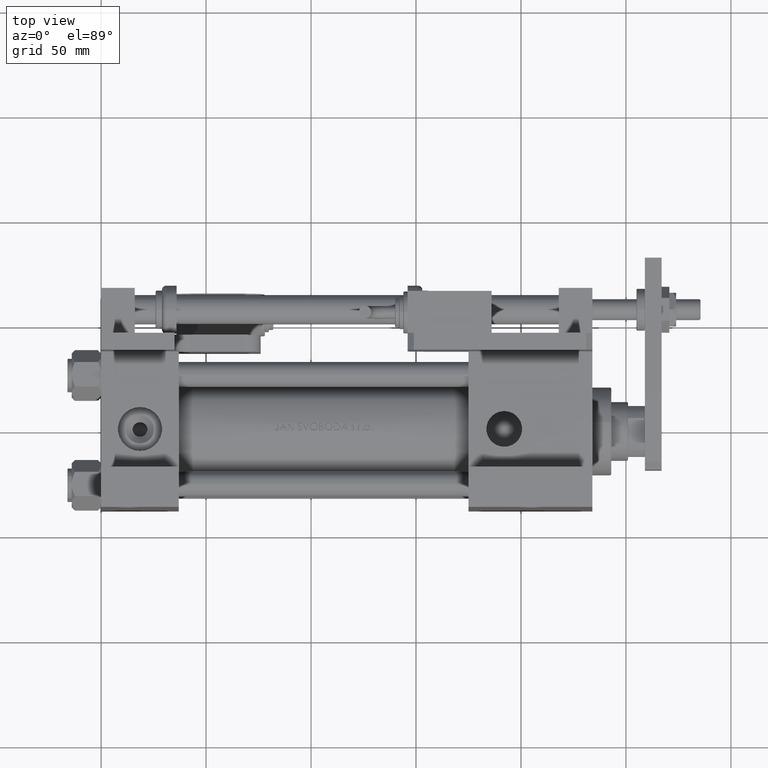
[diagram: clean part render]
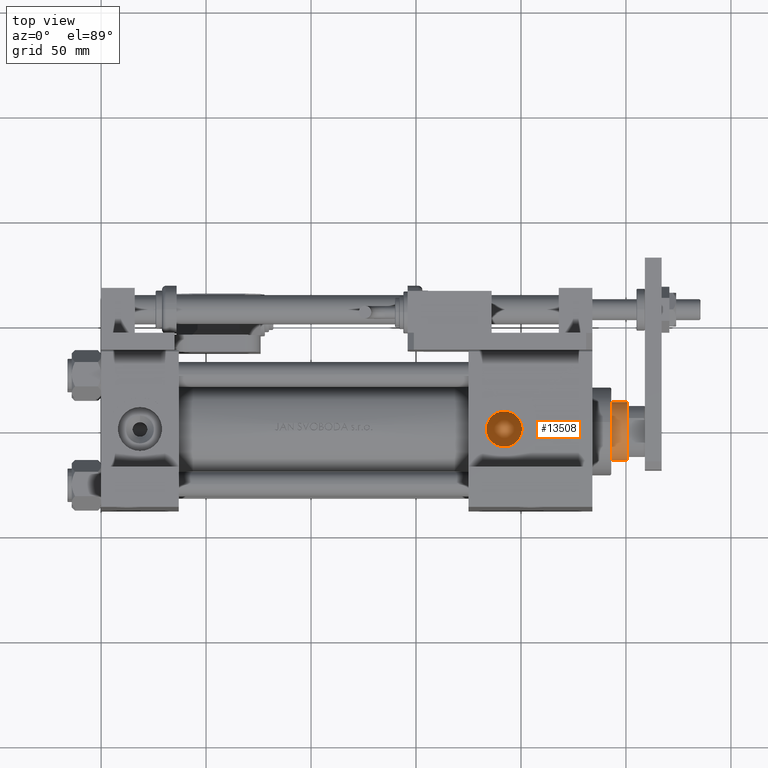
[diagram: same view with one face highlighted and labeled with its STEP entity id]
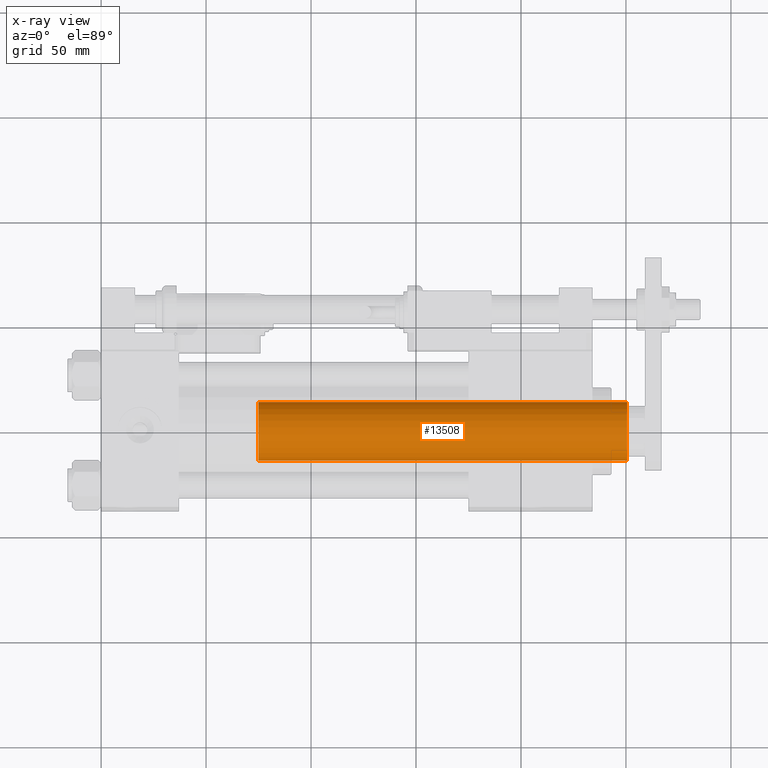
[diagram: x-ray of the same camera — body ghosted, the highlighted face saturated]
A machine part, top view. The second image highlights one B-rep face of the part: STEP entity #13508.
The next image is the same camera in x-ray: the body ghosted, the highlighted face saturated — about 0% of this face is hidden behind the body in this view.
In plain terms, the highlighted cylindrical surface (edge-blend (fillet) strip) has radius 14 mm, axis along (-1, -0, -0).
Its self-contained STEP definition (entity closure, byte-faithful):
#280 = VECTOR ( 'NONE', #20507, 1000.000000000000000 ) ;
#296 = DIRECTION ( 'NONE',  ( -1.000000000000000000, 0.000000000000000000, 0.000000000000000000 ) ) ;
#1086 = AXIS2_PLACEMENT_3D ( 'NONE', #51629, #43289, #9883 ) ;
#3216 = CARTESIAN_POINT ( 'NONE',  ( 0.000000000000000000, 0.000000000000000000, 213.5000000000000000 ) ) ;
#3514 = CARTESIAN_POINT ( 'NONE',  ( -14.00000000000000000, 0.000000000000000000, 214.0000000000000000 ) ) ;
#5299 = VERTEX_POINT ( 'NONE', #19379 ) ;
#5648 = EDGE_CURVE ( 'NONE', #5299, #8331, #11350, .T. ) ;
#5838 = CARTESIAN_POINT ( 'NONE',  ( -14.00000000000000000, 0.000000000000000000, 38.00000000000000000 ) ) ;
#7912 = AXIS2_PLACEMENT_3D ( 'NONE', #3216, #40402, #10774 ) ;
#8331 = VERTEX_POINT ( 'NONE', #29213 ) ;
#8670 = DIRECTION ( 'NONE',  ( -0.000000000000000000, -0.000000000000000000, -1.000000000000000000 ) ) ;
#8799 = CIRCLE ( 'NONE', #7912, 14.00000000000000000 ) ;
#8931 = CARTESIAN_POINT ( 'NONE',  ( 0.000000000000000000, 0.000000000000000000, 214.0000000000000000 ) ) ;
#9153 = ORIENTED_EDGE ( 'NONE', *, *, #28802, .T. ) ;
#9883 = DIRECTION ( 'NONE',  ( 1.000000000000000000, 0.000000000000000000, 0.000000000000000000 ) ) ;
#10774 = DIRECTION ( 'NONE',  ( 1.000000000000000000, 0.000000000000000000, 0.000000000000000000 ) ) ;
#10930 = VERTEX_POINT ( 'NONE', #5838 ) ;
#11350 = LINE ( 'NONE', #19448, #41231 ) ;
#13508 = ADVANCED_FACE ( 'NONE', ( #41275 ), #53114, .T. ) ;
#14885 = CIRCLE ( 'NONE', #1086, 14.00000000000000000 ) ;
#19379 = CARTESIAN_POINT ( 'NONE',  ( 14.00000000000000000, 1.714505518806294638E-15, 213.5000000000000000 ) ) ;
#19448 = CARTESIAN_POINT ( 'NONE',  ( 14.00000000000000000, 1.714505518806294638E-15, 214.0000000000000000 ) ) ;
#20507 = DIRECTION ( 'NONE',  ( -0.000000000000000000, -0.000000000000000000, -1.000000000000000000 ) ) ;
#23360 = ORIENTED_EDGE ( 'NONE', *, *, #26700, .T. ) ;
#24022 = LINE ( 'NONE', #3514, #280 ) ;
#25879 = CARTESIAN_POINT ( 'NONE',  ( -14.00000000000000000, 0.000000000000000000, 213.5000000000000000 ) ) ;
#26700 = EDGE_CURVE ( 'NONE', #10930, #8331, #14885, .T. ) ;
#28802 = EDGE_CURVE ( 'NONE', #5299, #32098, #8799, .T. ) ;
#29213 = CARTESIAN_POINT ( 'NONE',  ( 14.00000000000000000, 1.714505518806294638E-15, 38.00000000000000000 ) ) ;
#31345 = EDGE_LOOP ( 'NONE', ( #52943, #9153, #39644, #23360 ) ) ;
#32086 = EDGE_CURVE ( 'NONE', #32098, #10930, #24022, .T. ) ;
#32098 = VERTEX_POINT ( 'NONE', #25879 ) ;
#39364 = DIRECTION ( 'NONE',  ( -0.000000000000000000, -0.000000000000000000, -1.000000000000000000 ) ) ;
#39644 = ORIENTED_EDGE ( 'NONE', *, *, #32086, .T. ) ;
#40402 = DIRECTION ( 'NONE',  ( 0.000000000000000000, 0.000000000000000000, -1.000000000000000000 ) ) ;
#41231 = VECTOR ( 'NONE', #39364, 1000.000000000000000 ) ;
#41275 = FACE_OUTER_BOUND ( 'NONE', #31345, .T. ) ;
#43289 = DIRECTION ( 'NONE',  ( 0.000000000000000000, 0.000000000000000000, 1.000000000000000000 ) ) ;
#51629 = CARTESIAN_POINT ( 'NONE',  ( 0.000000000000000000, 0.000000000000000000, 38.00000000000000000 ) ) ;
#51703 = AXIS2_PLACEMENT_3D ( 'NONE', #8931, #8670, #296 ) ;
#52943 = ORIENTED_EDGE ( 'NONE', *, *, #5648, .F. ) ;
#53114 = CYLINDRICAL_SURFACE ( 'NONE', #51703, 14.00000000000000000 ) ;